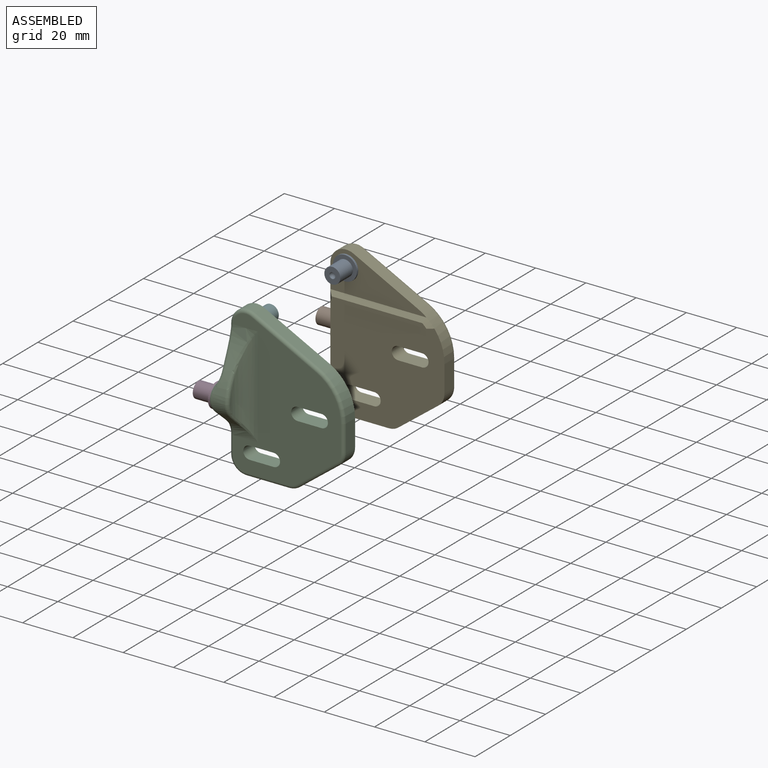
[diagram: assembled view]
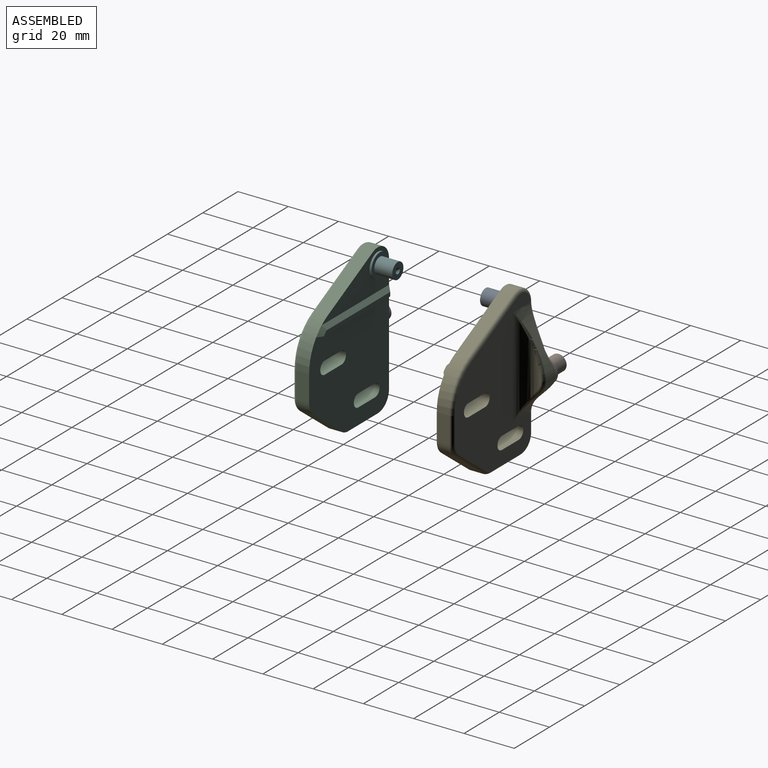
[diagram: assembled view, second angle]
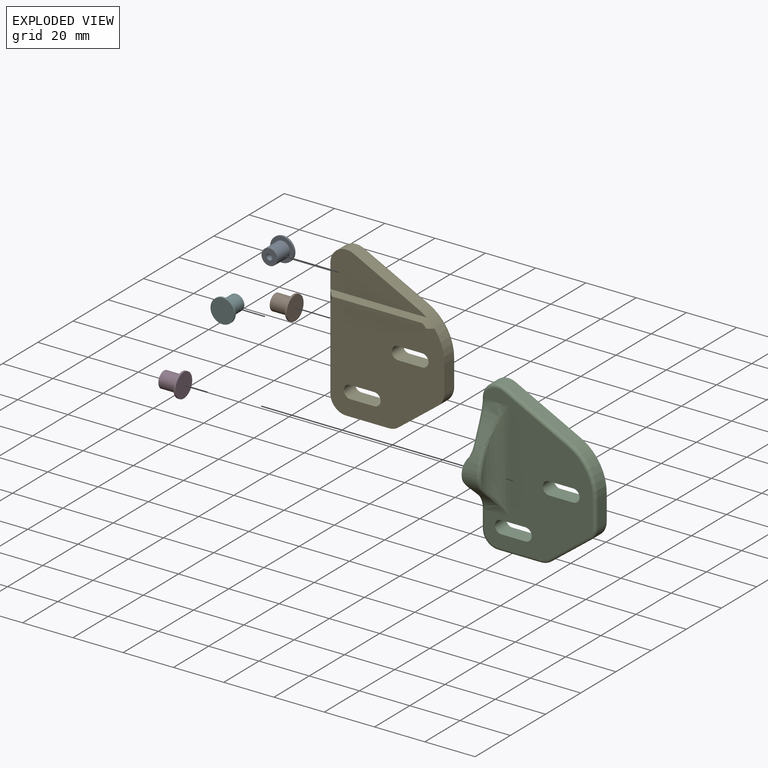
[diagram: exploded view]
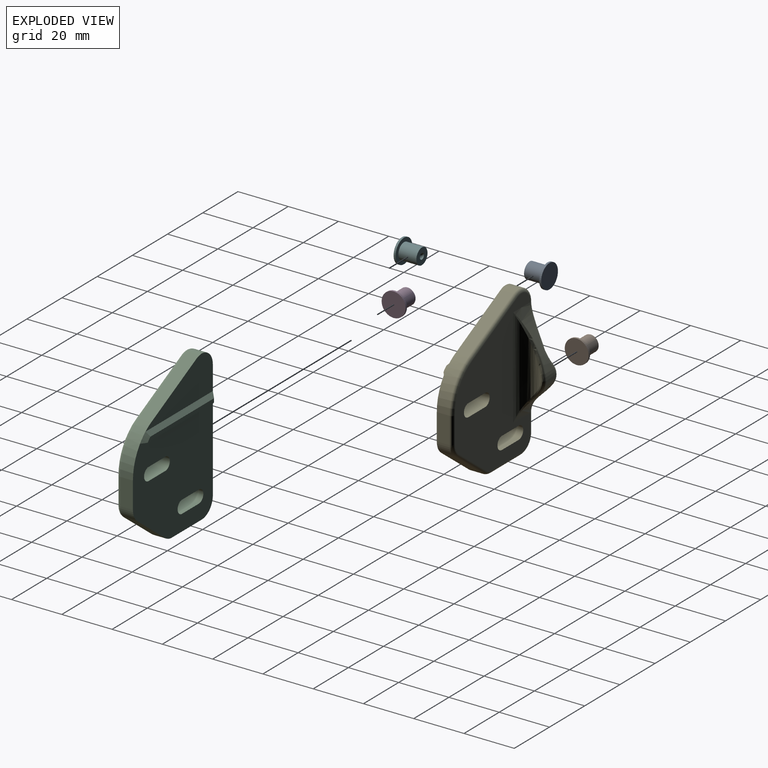
[diagram: exploded view, second angle]
ASSEMBLY  parts=6 mates=4
PART A: 7 faces, bbox 7.9x9.5x9.5 mm
  f0: sphere r=1.19mm, area 8.9mm2, adj f1,f6
  f1: plane 6.35x6.35mm, normal (1,0,0), area 27.2mm2, adj f0,f2
  f2: cylinder r=3.17mm len=7.14mm, axis (-1,0,0), area 142.5mm2, adj f1,f3
  f3: plane 9.53x9.53mm, normal (1,0,0), area 39.6mm2, adj f2,f4
  f4: cylinder r=4.76mm len=9.53mm, axis (-1,0,0), area 23.8mm2, adj f3,f5
  f5: plane 9.53x9.53mm, normal (-1,0,0), area 71.3mm2, adj f4,f6
  f6: cylinder r=0.01mm len=6.75mm, axis (-1,0,0), area 0.5mm2, adj f0,f5
PART B: same geometry as A
PART C: 53 faces, bbox 53.9x29.6x61.3 mm
  f0: plane 45.96x41.19mm, normal (0,-1,0), area 1529.9mm2, adj f2,f3,f4,f5,f6,f7,f8,f9
  f1: extruded ~25.4x13.07mm, area 122.2mm2, adj f21,f23,f29,f42,f44,f51,f52
  f2: plane 23.13x10.28mm, normal (-1,0,0), area 131.4mm2, adj f0,f17,f22,f26,f42,f47
  f3: plane 9.53x6.35mm, normal (0,0,-1), area 60.5mm2, adj f0,f4,f20,f21
  f4: cylinder r=2.55mm len=6.35mm, axis (0,-1,0), area 50.9mm2, adj f0,f3,f5,f21
  f5: plane 9.53x6.35mm, normal (0,0,1), area 60.5mm2, adj f0,f4,f20,f21
  f6: plane 9.53x6.35mm, normal (0,0,-1), area 60.5mm2, adj f0,f7,f18,f21
  f7: cylinder r=2.55mm len=6.35mm, axis (0,-1,0), area 50.9mm2, adj f0,f6,f8,f21
  f8: plane 9.53x6.35mm, normal (0,0,1), area 60.5mm2, adj f0,f7,f18,f21
  f9: cylinder r=19.05mm len=16.99mm, axis (0,-1,0), area 106.6mm2, adj f0,f10,f19,f22,f36,f48
  f10: plane 10.56x5.08mm, normal (1,0,0), area 53.6mm2, adj f0,f9,f11,f34
  f11: cylinder r=6.35mm len=5.08mm, axis (0,-1,0), area 29.7mm2, adj f0,f10,f12,f32
  f12: plane 15.81x12.05mm, normal (0.61,0,0.8), area 101mm2, adj f0,f11,f13,f33
  f13: cylinder r=6.35mm len=5.08mm, axis (0,-1,0), area 21mm2, adj f0,f12,f14,f35
  f14: plane 16.91x5.08mm, normal (0,0,1), area 85.9mm2, adj f0,f13,f15,f37
  f15: cylinder r=6.35mm len=6.35mm, axis (0,-1,0), area 50.7mm2, adj f0,f14,f16,f39
  f16: plane 19.33x6.73mm, normal (-1,0,0), area 80.2mm2, adj f0,f15,f26,f41,f43
  f17: cylinder r=6.35mm len=9.22mm, axis (0,-1,0), area 65.8mm2, adj f2,f19,f22,f40
  f18: cylinder r=2.55mm len=6.35mm, axis (0,-1,0), area 50.9mm2, adj f0,f6,f8,f21
  f19: plane 25.76x13.07mm, normal (0.45,0,-0.89), area 146.7mm2, adj f9,f17,f22,f38
  f20: cylinder r=2.55mm len=6.35mm, axis (0,-1,0), area 50.9mm2, adj f0,f3,f5,f21
  f21: plane 57.16x42.88mm, normal (0,1,0), area 1408.2mm2, adj f1,f3,f4,f5,f6,f7,f8,f18
  f22: plane 38.27x15.88mm, normal (0,-1,0), area 363.8mm2, adj f2,f9,f17,f19,f29,f46
  f23: extruded ~14.48x13.07mm, area 89.3mm2, adj f1,f21,f43,f45,f49,f50
  f24: plane 3.8x0.24mm, normal (1,0,0), area 0.6mm2, adj f27,f50,f51
  f25: plane 9.7x9.63mm, normal (-1,0,0), area 71mm2, adj f26,f28,f44,f45
  f26: torus R=9.72mm, axis (1,0,0), area 156.1mm2, adj f0,f2,f16,f25,f44,f45
  f27: cylinder r=6.35mm len=39.88mm, axis (0,0,-1), area 244mm2, adj f21,f24,f28,f49,f52
  f28: cylinder r=0.01mm len=8.04mm, axis (-1,0,0), area 0.6mm2, adj f25,f27
  f29: cylinder r=0.01mm len=6.35mm, axis (0,-1,0), area 0.5mm2, adj f1,f21,f22
  f30: plane 41.47x1.66mm, normal (0,0,1), area 62.8mm2, adj f0,f31,f47,f48
  f31: plane 37.74x1.59mm, normal (0,-1,0), area 58.7mm2, adj f30,f46,f47,f48
  f32: torus R=5.08mm, axis (0,1,0), area 10.8mm2, adj f11,f21,f33,f34
  f33: cylinder r=1.27mm len=16.58mm, axis (0.8,0,-0.61), area 39.7mm2, adj f12,f21,f32,f35
  f34: cylinder r=1.27mm len=10.56mm, axis (0,0,-1), area 21.1mm2, adj f10,f21,f32,f36
  f35: torus R=5.08mm, axis (0,1,0), area 7.6mm2, adj f13,f21,f33,f37
  f36: torus R=17.78mm, axis (0,1,0), area 40.8mm2, adj f9,f21,f34,f38
  f37: cylinder r=1.27mm len=16.91mm, axis (1,0,0), area 33.7mm2, adj f14,f21,f35,f39
  f38: cylinder r=1.27mm len=26.34mm, axis (-0.89,0,-0.45), area 57.6mm2, adj f19,f21,f36,f40
  f39: torus R=5.08mm, axis (0,1,0), area 18.5mm2, adj f15,f21,f37,f41
  f40: torus R=5.08mm, axis (0,1,0), area 24mm2, adj f17,f21,f38,f42
  f41: cylinder r=1.27mm len=7.12mm, axis (0,0,1), area 14.2mm2, adj f16,f21,f39,f43
  f42: bspline ~17.7x7.05mm, area 32.6mm2, adj f1,f2,f40,f44
  f43: bspline ~9.71x2.96mm, area 10mm2, adj f16,f23,f41,f45
  f44: bspline ~12.59x4.7mm, area 14.9mm2, adj f1,f25,f26,f42,f45
  f45: bspline ~10.31x7.61mm, area 15.7mm2, adj f23,f25,f26,f43,f44
  f46: plane 38.29x1.61mm, normal (0,-0.71,-0.71), area 83.5mm2, adj f22,f31,f47,f48
  f47: plane 3.18x1.59mm, normal (-0.71,-0.71,0), area 5.3mm2, adj f2,f30,f31,f46
  f48: cone r=19.05mm half-angle=45deg, axis (0,1,0), area 7.5mm2, adj f9,f30,f31,f46
  f49: bspline ~13.6x7.77mm, area 13.6mm2, adj f23,f27,f50
  f50: bspline ~6.53x1.95mm, area 3.6mm2, adj f23,f24,f49,f51
  f51: bspline ~7.59x1.57mm, area 4.9mm2, adj f1,f24,f50,f52
  f52: bspline ~24.13x7.77mm, area 19.9mm2, adj f1,f27,f51
PART D: same geometry as A
PART E: 53 faces, bbox 53.9x29.6x61.3 mm
  f0: plane 45.96x41.19mm, normal (0,1,0), area 1529.9mm2, adj f2,f3,f4,f5,f6,f7,f8,f9
  f1: extruded ~25.4x13.07mm, area 122.2mm2, adj f21,f23,f29,f42,f44,f51,f52
  f2: plane 23.12x10.28mm, normal (-1,0,0), area 131.4mm2, adj f0,f17,f22,f26,f42,f47
  f3: plane 9.53x6.35mm, normal (0,0,-1), area 60.5mm2, adj f0,f4,f20,f21
  f4: cylinder r=2.55mm len=6.35mm, axis (0,1,0), area 50.9mm2, adj f0,f3,f5,f21
  f5: plane 9.53x6.35mm, normal (0,0,1), area 60.5mm2, adj f0,f4,f20,f21
  f6: plane 9.53x6.35mm, normal (0,0,-1), area 60.5mm2, adj f0,f7,f18,f21
  f7: cylinder r=2.55mm len=6.35mm, axis (0,1,0), area 50.9mm2, adj f0,f6,f8,f21
  f8: plane 9.53x6.35mm, normal (0,0,1), area 60.5mm2, adj f0,f7,f18,f21
  f9: cylinder r=19.05mm len=16.99mm, axis (0,1,0), area 106.6mm2, adj f0,f10,f19,f22,f36,f48
  f10: plane 10.56x5.08mm, normal (1,0,0), area 53.6mm2, adj f0,f9,f11,f34
  f11: cylinder r=6.35mm len=5.08mm, axis (0,1,0), area 29.7mm2, adj f0,f10,f12,f32
  f12: plane 15.81x12.05mm, normal (0.61,0,0.8), area 101mm2, adj f0,f11,f13,f33
  f13: cylinder r=6.35mm len=5.08mm, axis (0,1,0), area 21mm2, adj f0,f12,f14,f35
  f14: plane 16.91x5.08mm, normal (0,0,1), area 85.9mm2, adj f0,f13,f15,f37
  f15: cylinder r=6.35mm len=6.35mm, axis (0,1,0), area 50.7mm2, adj f0,f14,f16,f39
  f16: plane 19.33x6.73mm, normal (-1,0,0), area 80.2mm2, adj f0,f15,f26,f41,f43
  f17: cylinder r=6.35mm len=9.22mm, axis (0,1,0), area 65.8mm2, adj f2,f19,f22,f40
  f18: cylinder r=2.55mm len=6.35mm, axis (0,1,0), area 50.9mm2, adj f0,f6,f8,f21
  f19: plane 25.76x13.07mm, normal (0.45,0,-0.89), area 146.7mm2, adj f9,f17,f22,f38
  f20: cylinder r=2.55mm len=6.35mm, axis (0,1,0), area 50.9mm2, adj f0,f3,f5,f21
  f21: plane 57.16x42.88mm, normal (0,-1,0), area 1408.2mm2, adj f1,f3,f4,f5,f6,f7,f8,f18
  f22: plane 38.27x15.88mm, normal (0,1,0), area 363.8mm2, adj f2,f9,f17,f19,f29,f46
  f23: extruded ~14.48x13.07mm, area 89.3mm2, adj f1,f21,f43,f45,f49,f50
  f24: plane 3.8x0.24mm, normal (1,0,0), area 0.6mm2, adj f27,f50,f51
  f25: plane 9.7x9.63mm, normal (-1,0,0), area 71mm2, adj f26,f28,f44,f45
  f26: torus R=9.72mm, axis (1,0,0), area 156.1mm2, adj f0,f2,f16,f25,f44,f45
  f27: cylinder r=6.35mm len=39.88mm, axis (0,0,-1), area 244mm2, adj f21,f24,f28,f49,f52
  f28: cylinder r=0.01mm len=8.04mm, axis (-1,0,0), area 0.6mm2, adj f25,f27
  f29: cylinder r=0.01mm len=6.35mm, axis (0,1,0), area 0.5mm2, adj f1,f21,f22
  f30: plane 41.47x1.66mm, normal (0,0,1), area 62.8mm2, adj f0,f31,f47,f48
  f31: plane 37.74x1.59mm, normal (0,1,0), area 58.7mm2, adj f30,f46,f47,f48
  f32: torus R=5.08mm, axis (0,-1,0), area 10.8mm2, adj f11,f21,f33,f34
  f33: cylinder r=1.27mm len=16.58mm, axis (0.8,0,-0.61), area 39.7mm2, adj f12,f21,f32,f35
  f34: cylinder r=1.27mm len=10.56mm, axis (0,0,-1), area 21.1mm2, adj f10,f21,f32,f36
  f35: torus R=5.08mm, axis (0,-1,0), area 7.6mm2, adj f13,f21,f33,f37
  f36: torus R=17.78mm, axis (0,-1,0), area 40.8mm2, adj f9,f21,f34,f38
  f37: cylinder r=1.27mm len=16.91mm, axis (1,0,0), area 33.7mm2, adj f14,f21,f35,f39
  f38: cylinder r=1.27mm len=26.34mm, axis (-0.89,0,-0.45), area 57.6mm2, adj f19,f21,f36,f40
  f39: torus R=5.08mm, axis (0,-1,0), area 18.5mm2, adj f15,f21,f37,f41
  f40: torus R=5.08mm, axis (0,-1,0), area 24mm2, adj f17,f21,f38,f42
  f41: cylinder r=1.27mm len=7.12mm, axis (0,0,1), area 14.2mm2, adj f16,f21,f39,f43
  f42: bspline ~17.7x7.05mm, area 32.6mm2, adj f1,f2,f40,f44
  f43: bspline ~9.71x2.96mm, area 10mm2, adj f16,f23,f41,f45
  f44: bspline ~12.59x4.7mm, area 14.9mm2, adj f1,f25,f26,f42,f45
  f45: bspline ~10.31x7.61mm, area 15.7mm2, adj f23,f25,f26,f43,f44
  f46: plane 38.29x1.61mm, normal (0,0.71,-0.71), area 83.5mm2, adj f22,f31,f47,f48
  f47: plane 3.18x1.59mm, normal (-0.71,0.71,0), area 5.3mm2, adj f2,f30,f31,f46
  f48: cone r=19.05mm half-angle=45deg, axis (0,-1,0), area 7.5mm2, adj f9,f30,f31,f46
  f49: bspline ~13.6x7.77mm, area 13.3mm2, adj f23,f27,f50
  f50: bspline ~6.53x1.95mm, area 3.6mm2, adj f23,f24,f49,f51
  f51: bspline ~8.52x1.77mm, area 4.9mm2, adj f1,f24,f50,f52
  f52: bspline ~24.13x7.77mm, area 20.1mm2, adj f1,f27,f51
PART F: same geometry as A
PLACE A rot(axis=(0.58,-0.58,-0.58),120deg) t=(-23.11,108.33,-19.97)mm
PLACE B rot(axis=(0,0.71,0.71),180deg) t=(-31.84,117.78,-45.37)mm
PLACE C rot(axis=(1,0,0),180deg) t=(-29.46,57.53,-32.67)mm
PLACE D rot(axis=(0,0.71,0.71),180deg) t=(-31.84,48.08,-45.37)mm
PLACE E rot(axis=(1,0,0),180deg) t=(-29.46,108.33,-32.67)mm
PLACE F rot(axis=(-0.58,-0.58,0.58),120deg) t=(-23.11,57.53,-19.97)mm
MATE fastened E.f17 <-> A.f2  axis (0,-1,0) through (-23.11,108.33,-19.97)mm
MATE fastened B.f2 <-> E.f26  axis (1,0,0) through (-31.84,117.78,-45.37)mm
MATE fastened D.f2 <-> C.f26  axis (1,0,0) through (-31.84,48.08,-45.37)mm
MATE fastened C.f17 <-> F.f2  axis (0,1,0) through (-23.11,57.53,-19.97)mm
